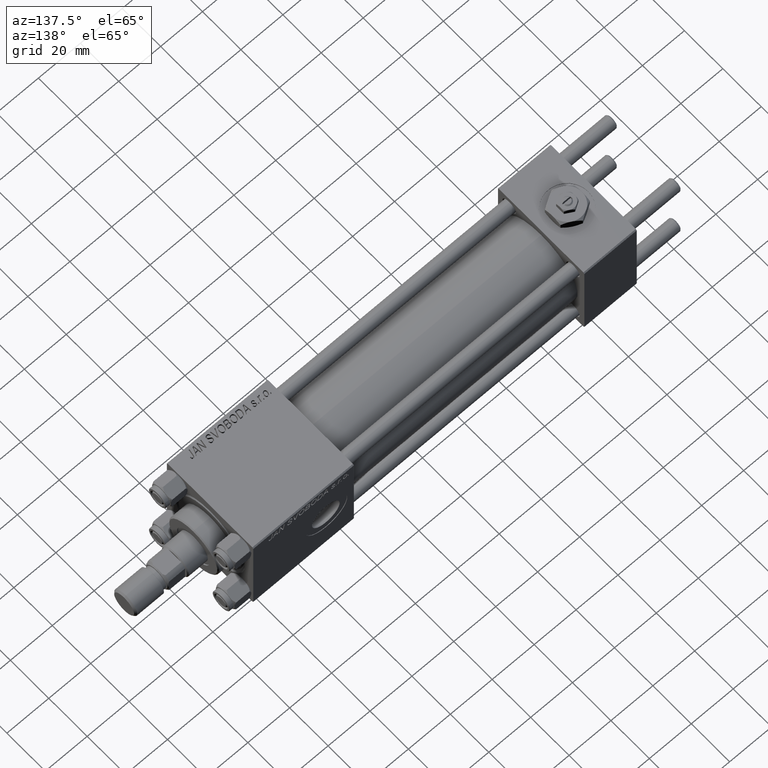
[diagram: clean part render]
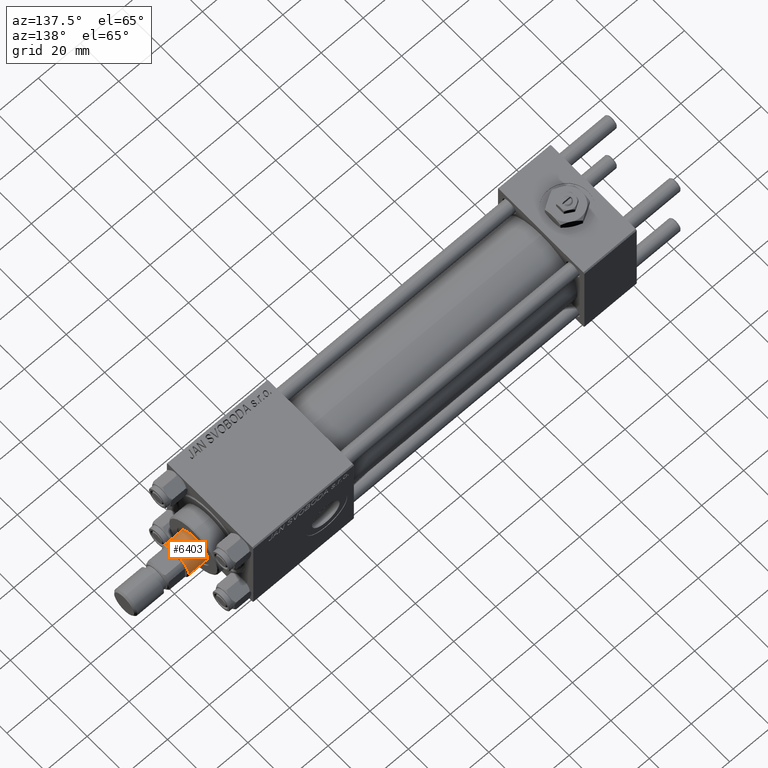
[diagram: same view with one face highlighted and labeled with its STEP entity id]
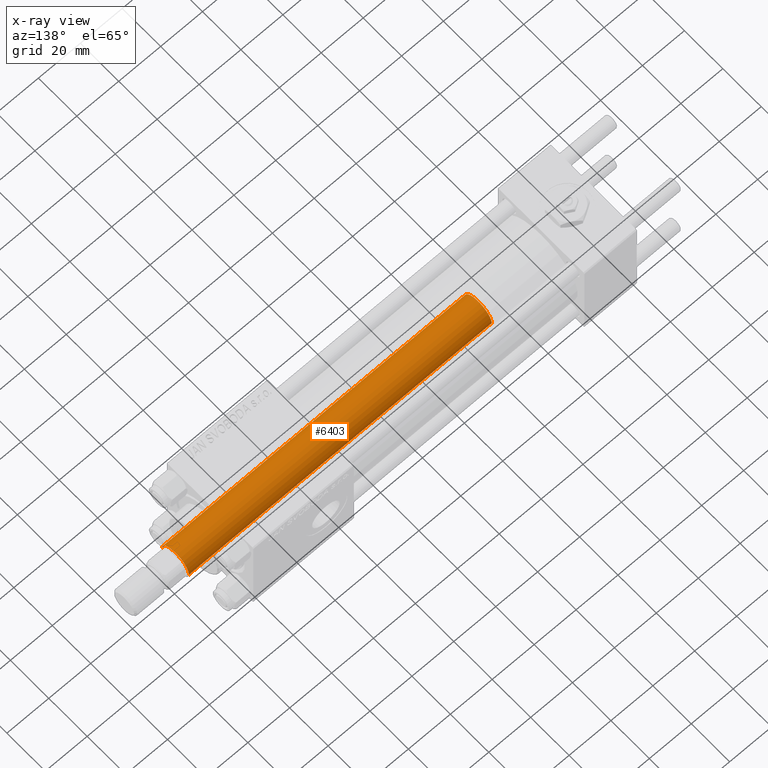
[diagram: x-ray of the same camera — body ghosted, the highlighted face saturated]
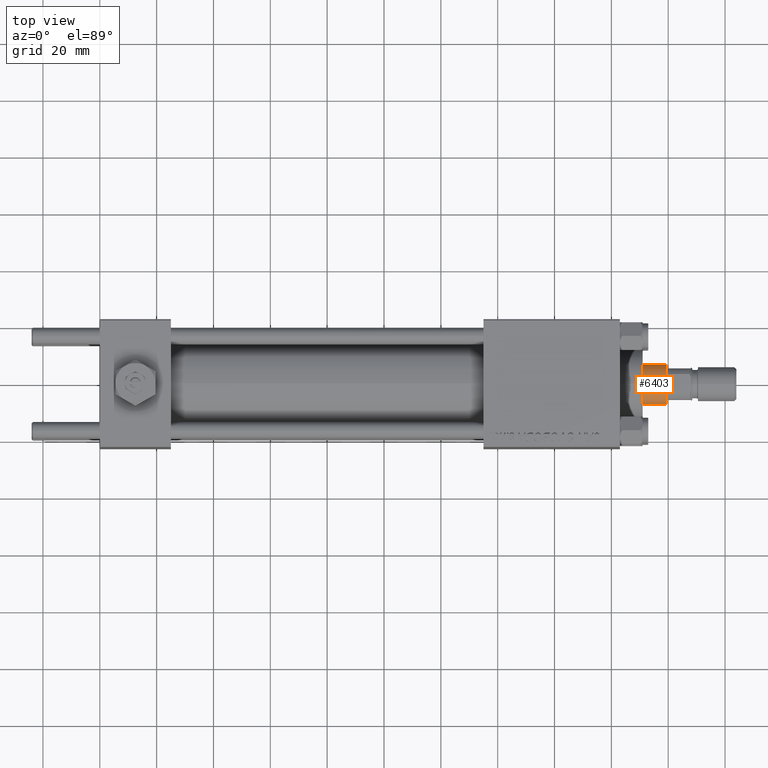
[diagram: same view with one face highlighted and labeled with its STEP entity id]
A machine part, auxiliary view. The second image highlights one B-rep face of the part: STEP entity #6403.
The next image is the same camera in x-ray: the body ghosted, the highlighted face saturated — about 0% of this face is hidden behind the body in this view.
A second angle (top view) of the same face is appended — the face is thin or edge-on in the first view.
In plain terms, the highlighted cylindrical surface (edge-blend (fillet) strip) has radius 7 mm, axis along (-1, 0, 0).
Its self-contained STEP definition (entity closure, byte-faithful):
#363 = EDGE_CURVE ( 'NONE', #3819, #45888, #38422, .T. ) ;
#2691 = CIRCLE ( 'NONE', #32134, 7.000000000000000000 ) ;
#3168 = AXIS2_PLACEMENT_3D ( 'NONE', #36260, #43123, #35992 ) ;
#3819 = VERTEX_POINT ( 'NONE', #40992 ) ;
#6403 = ADVANCED_FACE ( 'NONE', ( #39161 ), #43634, .T. ) ;
#7811 = CARTESIAN_POINT ( 'NONE',  ( -7.000000000000000000, 0.000000000000000000, 174.4999999999999716 ) ) ;
#10306 = EDGE_CURVE ( 'NONE', #3819, #47397, #37757, .T. ) ;
#12109 = CARTESIAN_POINT ( 'NONE',  ( 0.000000000000000000, 0.000000000000000000, 30.00000000000000000 ) ) ;
#16182 = EDGE_CURVE ( 'NONE', #40146, #47397, #2691, .T. ) ;
#20072 = ORIENTED_EDGE ( 'NONE', *, *, #16182, .T. ) ;
#23474 = EDGE_CURVE ( 'NONE', #45888, #40146, #49295, .T. ) ;
#23978 = CARTESIAN_POINT ( 'NONE',  ( -7.000000000000000000, 0.000000000000000000, 30.00000000000000000 ) ) ;
#24344 = VECTOR ( 'NONE', #26165, 1000.000000000000000 ) ;
#24649 = DIRECTION ( 'NONE',  ( 0.000000000000000000, 0.000000000000000000, -1.000000000000000000 ) ) ;
#26165 = DIRECTION ( 'NONE',  ( -0.000000000000000000, -0.000000000000000000, -1.000000000000000000 ) ) ;
#28182 = DIRECTION ( 'NONE',  ( 0.000000000000000000, 0.000000000000000000, 1.000000000000000000 ) ) ;
#29280 = ORIENTED_EDGE ( 'NONE', *, *, #10306, .F. ) ;
#29633 = CARTESIAN_POINT ( 'NONE',  ( 0.000000000000000000, 0.000000000000000000, 174.4999999999999716 ) ) ;
#31950 = CARTESIAN_POINT ( 'NONE',  ( 7.000000000000000000, 8.572527594031473190E-16, 30.00000000000000000 ) ) ;
#32134 = AXIS2_PLACEMENT_3D ( 'NONE', #12109, #28182, #40308 ) ;
#32723 = DIRECTION ( 'NONE',  ( -0.000000000000000000, -0.000000000000000000, -1.000000000000000000 ) ) ;
#35992 = DIRECTION ( 'NONE',  ( -1.000000000000000000, 0.000000000000000000, 0.000000000000000000 ) ) ;
#36260 = CARTESIAN_POINT ( 'NONE',  ( 0.000000000000000000, 0.000000000000000000, 175.0000000000000000 ) ) ;
#37276 = DIRECTION ( 'NONE',  ( 1.000000000000000000, 0.000000000000000000, 0.000000000000000000 ) ) ;
#37757 = LINE ( 'NONE', #45923, #24344 ) ;
#38422 = CIRCLE ( 'NONE', #44327, 7.000000000000000000 ) ;
#39161 = FACE_OUTER_BOUND ( 'NONE', #45920, .T. ) ;
#40146 = VERTEX_POINT ( 'NONE', #23978 ) ;
#40308 = DIRECTION ( 'NONE',  ( 1.000000000000000000, 0.000000000000000000, 0.000000000000000000 ) ) ;
#40730 = ORIENTED_EDGE ( 'NONE', *, *, #23474, .T. ) ;
#40880 = CARTESIAN_POINT ( 'NONE',  ( -7.000000000000000000, 0.000000000000000000, 175.0000000000000000 ) ) ;
#40992 = CARTESIAN_POINT ( 'NONE',  ( 7.000000000000000000, 8.572527594031473190E-16, 174.4999999999999716 ) ) ;
#43123 = DIRECTION ( 'NONE',  ( -0.000000000000000000, -0.000000000000000000, -1.000000000000000000 ) ) ;
#43634 = CYLINDRICAL_SURFACE ( 'NONE', #3168, 7.000000000000000000 ) ;
#44327 = AXIS2_PLACEMENT_3D ( 'NONE', #29633, #24649, #37276 ) ;
#44869 = VECTOR ( 'NONE', #32723, 1000.000000000000000 ) ;
#45888 = VERTEX_POINT ( 'NONE', #7811 ) ;
#45920 = EDGE_LOOP ( 'NONE', ( #29280, #51155, #40730, #20072 ) ) ;
#45923 = CARTESIAN_POINT ( 'NONE',  ( 7.000000000000000000, 8.572527594031473190E-16, 175.0000000000000000 ) ) ;
#47397 = VERTEX_POINT ( 'NONE', #31950 ) ;
#49295 = LINE ( 'NONE', #40880, #44869 ) ;
#51155 = ORIENTED_EDGE ( 'NONE', *, *, #363, .T. ) ;